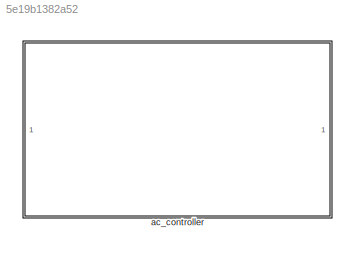
MODEL slx_5e19b1382a52
KIND library
CONFIG AbsTol = auto
CONFIG EnableMultiTasking = off
CONFIG FixedStep = auto
CONFIG MaxStep = auto
CONFIG MinStep = auto
CONFIG RelTol = 1e-3
CONFIG SampleTimeConstraint = Unconstrained
CONFIG SolverName = VariableStepAuto
CONFIG StartTime = 0.0
CONFIG StopTime = 10.0
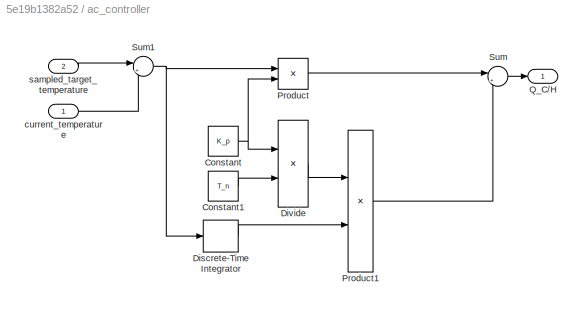
BLOCK [SubSystem] ac_controller
BLOCK [Constant] ac_controller/Constant
  OutDataTypeStr = uint16
  Value = K_p
BLOCK [Constant] ac_controller/Constant1
  OutDataTypeStr = uint16
  Value = T_n
BLOCK [DiscreteIntegrator] ac_controller/Discrete-Time Integrator
  ICPrevOutput = DiscIntNeverNeededParam
  ICPrevScaledInput = DiscIntNeverNeededParam
  InitialConditionSetting = Auto
  SampleTime = -1
BLOCK [Product] ac_controller/Divide
  Inputs = */
BLOCK [Product] ac_controller/Product
BLOCK [Product] ac_controller/Product1
BLOCK [Outport] ac_controller/Q_C//H
  LockScale = on
BLOCK [Sum] ac_controller/Sum
  Inputs = |++
BLOCK [Sum] ac_controller/Sum1
  Inputs = |+-
BLOCK [Inport] ac_controller/current_temperature
BLOCK [Inport] ac_controller/sampled_target_temperature
  Port = 2
LINE ac_controller/Constant1:1 -> ac_controller/Divide:2
NET ac_controller/Constant:1 -> ac_controller/Divide:1, ac_controller/Product:2
LINE ac_controller/Discrete-Time Integrator:1 -> ac_controller/Product1:2
LINE ac_controller/Divide:1 -> ac_controller/Product1:1
LINE ac_controller/Product1:1 -> ac_controller/Sum:2
LINE ac_controller/Product:1 -> ac_controller/Sum:1
NET ac_controller/Sum1:1 -> ac_controller/Discrete-Time Integrator:1, ac_controller/Product:1
LINE ac_controller/Sum:1 -> ac_controller/Q_C//H:1
LINE ac_controller/current_temperature:1 -> ac_controller/Sum1:2
LINE ac_controller/sampled_target_temperature:1 -> ac_controller/Sum1:1
note: NET lines group one-source signal fan-out (src -> all destinations, sorted); 1:1 wires keep LINE
